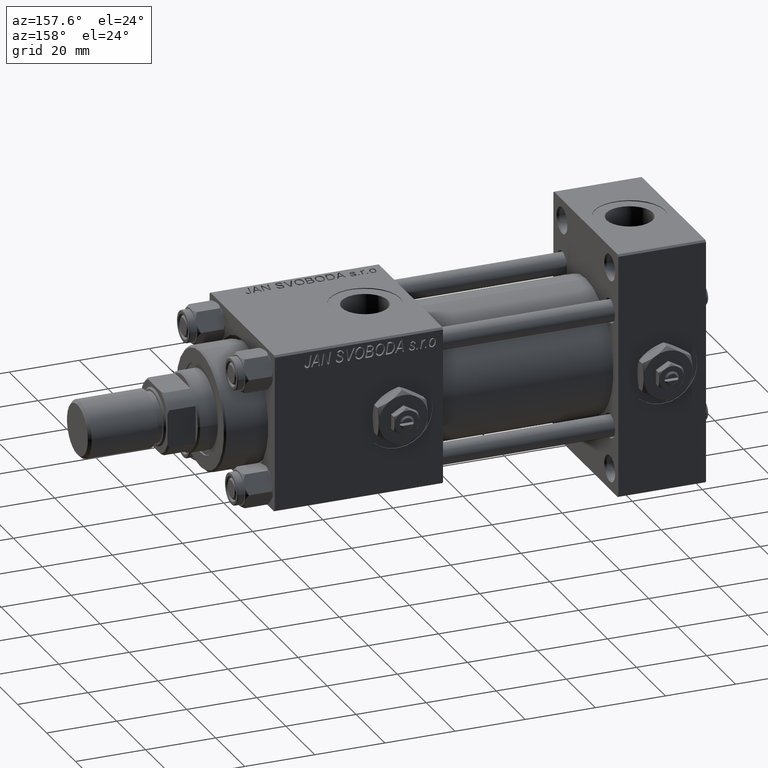
[diagram: clean part render]
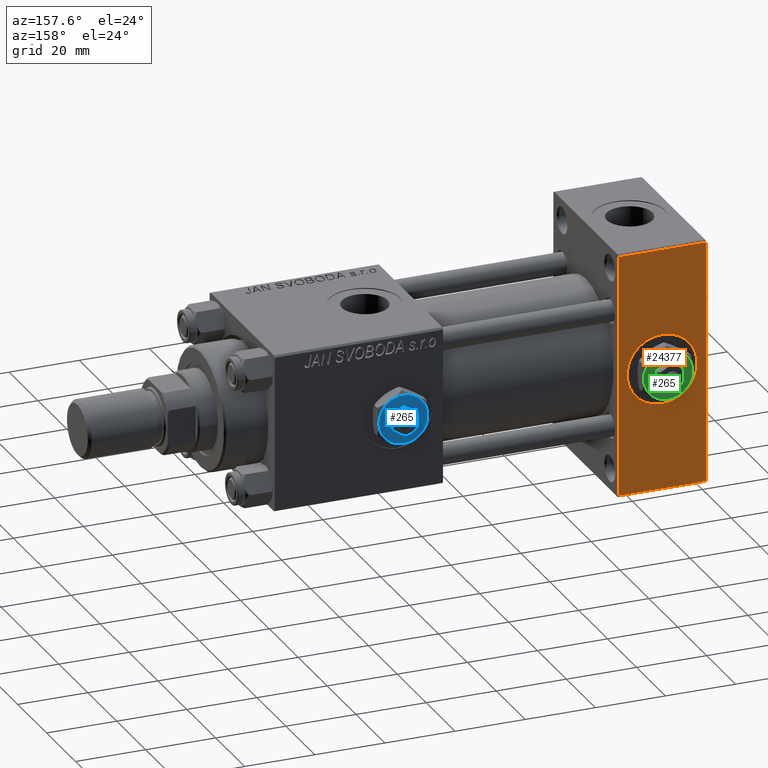
[diagram: same view with three faces highlighted in distinct colors, each labeled with its STEP entity id]
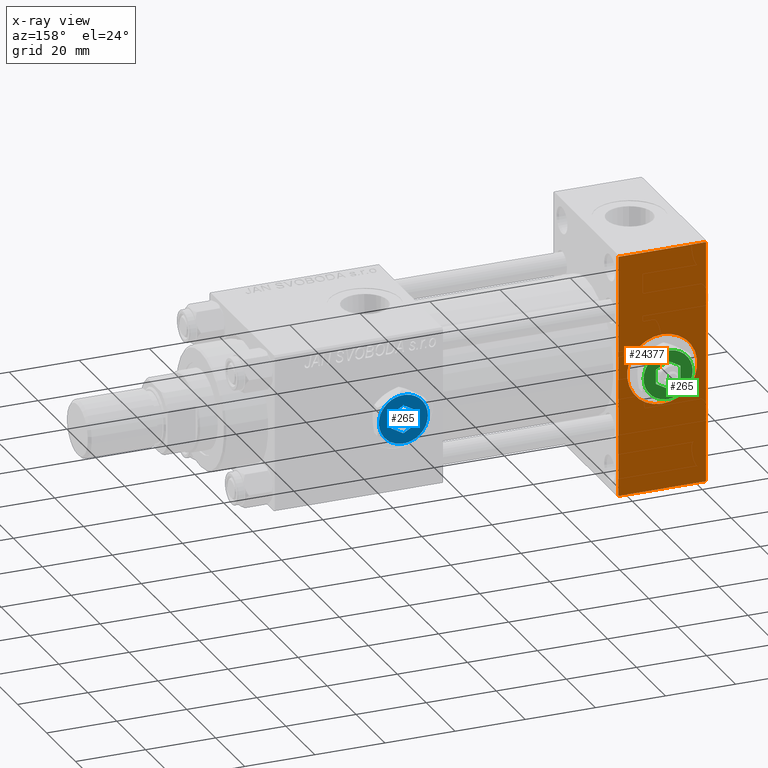
[diagram: x-ray of the same camera — body ghosted, the three highlighted faces saturated]
A machine part, auxiliary view with three faces highlighted in distinct colors.
The next image is the same camera in x-ray (body ghosted, the three faces saturated) — at least one of them is partly hidden behind the body in this view.
Their STEP definitions:

[orange] entity #24377 — the highlighted planar face has unit normal (0, 1, 0).
#1325 = CARTESIAN_POINT ( 'NONE',  ( 0.000000000000000000, 22.50000000000000355, 34.49999999999999289 ) ) ;
#1756 = DIRECTION ( 'NONE',  ( -0.000000000000000000, 1.000000000000000000, 0.000000000000000000 ) ) ;
#2003 = AXIS2_PLACEMENT_3D ( 'NONE', #29130, #45321, #9021 ) ;
#3245 = ORIENTED_EDGE ( 'NONE', *, *, #13567, .F. ) ;
#3697 = CARTESIAN_POINT ( 'NONE',  ( 25.00000000000000000, 22.50000000000000355, -34.49999999999999289 ) ) ;
#3930 = EDGE_CURVE ( 'NONE', #47564, #11513, #13629, .T. ) ;
#5665 = CARTESIAN_POINT ( 'NONE',  ( 25.00000000000000000, 22.50000000000000355, 35.00000000000000711 ) ) ;
#6272 = DIRECTION ( 'NONE',  ( 0.000000000000000000, -0.000000000000000000, 1.000000000000000000 ) ) ;
#6415 = DIRECTION ( 'NONE',  ( 1.000000000000000000, 0.000000000000000000, 0.000000000000000000 ) ) ;
#6442 = ORIENTED_EDGE ( 'NONE', *, *, #22543, .F. ) ;
#6887 = VECTOR ( 'NONE', #51894, 1000.000000000000000 ) ;
#8932 = EDGE_LOOP ( 'NONE', ( #13170, #6442 ) ) ;
#9021 = DIRECTION ( 'NONE',  ( 0.000000000000000000, 0.000000000000000000, 1.000000000000000000 ) ) ;
#11513 = VERTEX_POINT ( 'NONE', #47292 ) ;
#12173 = CIRCLE ( 'NONE', #51995, 9.999999999999996447 ) ;
#12414 = CARTESIAN_POINT ( 'NONE',  ( 12.50000000000000000, 22.50000000000000355, 0.000000000000000000 ) ) ;
#13170 = ORIENTED_EDGE ( 'NONE', *, *, #23717, .F. ) ;
#13567 = EDGE_CURVE ( 'NONE', #23351, #23527, #40177, .T. ) ;
#13629 = LINE ( 'NONE', #5665, #24724 ) ;
#13705 = FACE_BOUND ( 'NONE', #8932, .T. ) ;
#16535 = ORIENTED_EDGE ( 'NONE', *, *, #38044, .T. ) ;
#17425 = EDGE_LOOP ( 'NONE', ( #45088, #48806, #3245, #16535 ) ) ;
#17943 = FACE_OUTER_BOUND ( 'NONE', #17425, .T. ) ;
#19145 = VERTEX_POINT ( 'NONE', #51740 ) ;
#21904 = CARTESIAN_POINT ( 'NONE',  ( 25.00000000000000000, 22.50000000000000355, 34.49999999999999289 ) ) ;
#22543 = EDGE_CURVE ( 'NONE', #19145, #28847, #29051, .T. ) ;
#23351 = VERTEX_POINT ( 'NONE', #1325 ) ;
#23527 = VERTEX_POINT ( 'NONE', #43692 ) ;
#23578 = DIRECTION ( 'NONE',  ( -1.000000000000000000, 0.000000000000000000, 0.000000000000000000 ) ) ;
#23717 = EDGE_CURVE ( 'NONE', #28847, #19145, #12173, .T. ) ;
#24377 = ADVANCED_FACE ( 'NONE', ( #13705, #17943 ), #29848, .T. ) ;
#24724 = VECTOR ( 'NONE', #37462, 1000.000000000000000 ) ;
#27444 = AXIS2_PLACEMENT_3D ( 'NONE', #38061, #1756, #6272 ) ;
#28847 = VERTEX_POINT ( 'NONE', #38051 ) ;
#29051 = CIRCLE ( 'NONE', #2003, 9.999999999999996447 ) ;
#29130 = CARTESIAN_POINT ( 'NONE',  ( 12.50000000000000000, 22.50000000000000355, 0.000000000000000000 ) ) ;
#29639 = VECTOR ( 'NONE', #6415, 1000.000000000000000 ) ;
#29848 = PLANE ( 'NONE',  #27444 ) ;
#32252 = DIRECTION ( 'NONE',  ( 0.000000000000000000, 0.000000000000000000, 1.000000000000000000 ) ) ;
#32785 = DIRECTION ( 'NONE',  ( 0.000000000000000000, 1.000000000000000000, 0.000000000000000000 ) ) ;
#35956 = EDGE_CURVE ( 'NONE', #11513, #23527, #40250, .T. ) ;
#37462 = DIRECTION ( 'NONE',  ( 0.000000000000000000, 0.000000000000000000, -1.000000000000000000 ) ) ;
#38044 = EDGE_CURVE ( 'NONE', #23351, #47564, #43487, .T. ) ;
#38051 = CARTESIAN_POINT ( 'NONE',  ( 12.50000000000000000, 22.50000000000000355, 9.999999999999996447 ) ) ;
#38061 = CARTESIAN_POINT ( 'NONE',  ( 25.00000000000000000, 22.50000000000000355, 35.00000000000000711 ) ) ;
#40177 = LINE ( 'NONE', #47390, #6887 ) ;
#40250 = LINE ( 'NONE', #3697, #41403 ) ;
#41403 = VECTOR ( 'NONE', #23578, 1000.000000000000000 ) ;
#43487 = LINE ( 'NONE', #46446, #29639 ) ;
#43692 = CARTESIAN_POINT ( 'NONE',  ( 0.000000000000000000, 22.50000000000000355, -34.49999999999999289 ) ) ;
#45088 = ORIENTED_EDGE ( 'NONE', *, *, #3930, .T. ) ;
#45321 = DIRECTION ( 'NONE',  ( 0.000000000000000000, 1.000000000000000000, 0.000000000000000000 ) ) ;
#46446 = CARTESIAN_POINT ( 'NONE',  ( 25.00000000000000000, 22.50000000000000355, 34.49999999999999289 ) ) ;
#47292 = CARTESIAN_POINT ( 'NONE',  ( 25.00000000000000000, 22.50000000000000355, -34.49999999999999289 ) ) ;
#47390 = CARTESIAN_POINT ( 'NONE',  ( 0.000000000000000000, 22.50000000000000355, 35.00000000000000711 ) ) ;
#47564 = VERTEX_POINT ( 'NONE', #21904 ) ;
#48806 = ORIENTED_EDGE ( 'NONE', *, *, #35956, .T. ) ;
#51740 = CARTESIAN_POINT ( 'NONE',  ( 12.50000000000000178, 22.50000000000000355, -9.999999999999996447 ) ) ;
#51894 = DIRECTION ( 'NONE',  ( 0.000000000000000000, 0.000000000000000000, -1.000000000000000000 ) ) ;
#51995 = AXIS2_PLACEMENT_3D ( 'NONE', #12414, #32785, #32252 ) ;

[blue] entity #265 — the highlighted planar face has unit normal (0, 1, 0).
#40 = CARTESIAN_POINT ( 'NONE',  ( -3.499999999999998668, -2.020725942163689837, 4.299999999999999822 ) ) ;
#210 = ORIENTED_EDGE ( 'NONE', *, *, #41215, .T. ) ;
#265 = ADVANCED_FACE ( 'NONE', ( #42992, #2195 ), #23372, .T. ) ;
#302 = AXIS2_PLACEMENT_3D ( 'NONE', #51085, #19492, #30896 ) ;
#712 = EDGE_LOOP ( 'NONE', ( #12828, #22554, #49935, #210, #37365, #26474 ) ) ;
#2143 = CARTESIAN_POINT ( 'NONE',  ( 3.500000000000000000, -2.020725942163690281, 4.299999999999999822 ) ) ;
#2146 = VERTEX_POINT ( 'NONE', #2143 ) ;
#2195 = FACE_BOUND ( 'NONE', #43468, .T. ) ;
#4001 = EDGE_CURVE ( 'NONE', #6268, #32071, #10185, .T. ) ;
#4300 = LINE ( 'NONE', #45127, #11244 ) ;
#4605 = DIRECTION ( 'NONE',  ( 1.000000000000000000, 0.000000000000000000, 0.000000000000000000 ) ) ;
#4833 = CARTESIAN_POINT ( 'NONE',  ( -3.500000000000000888, 6.062177826491073063, 4.299999999999999822 ) ) ;
#5797 = VERTEX_POINT ( 'NONE', #7410 ) ;
#5842 = LINE ( 'NONE', #46151, #49141 ) ;
#6084 = LINE ( 'NONE', #22266, #44009 ) ;
#6268 = VERTEX_POINT ( 'NONE', #18973 ) ;
#7386 = CARTESIAN_POINT ( 'NONE',  ( -7.000000000000001776, -2.253471898105739040E-15, 4.299999999999999822 ) ) ;
#7410 = CARTESIAN_POINT ( 'NONE',  ( -3.500000000000000000, -6.062177826491073063, 4.299999999999999822 ) ) ;
#7531 = CARTESIAN_POINT ( 'NONE',  ( 0.000000000000000000, 0.000000000000000000, 4.299999999999999822 ) ) ;
#8034 = DIRECTION ( 'NONE',  ( -3.219245568722483357E-16, 1.000000000000000000, 0.000000000000000000 ) ) ;
#10009 = VERTEX_POINT ( 'NONE', #18227 ) ;
#10185 = LINE ( 'NONE', #31080, #11210 ) ;
#10310 = AXIS2_PLACEMENT_3D ( 'NONE', #48264, #19148, #19648 ) ;
#10959 = ORIENTED_EDGE ( 'NONE', *, *, #17580, .F. ) ;
#11210 = VECTOR ( 'NONE', #46488, 1000.000000000000000 ) ;
#11244 = VECTOR ( 'NONE', #8034, 1000.000000000000000 ) ;
#11869 = AXIS2_PLACEMENT_3D ( 'NONE', #43247, #19150, #15420 ) ;
#12177 = EDGE_CURVE ( 'NONE', #26108, #2146, #6084, .T. ) ;
#12282 = CARTESIAN_POINT ( 'NONE',  ( 0.000000000000000000, 4.041451884327380562, 4.299999999999999822 ) ) ;
#12828 = ORIENTED_EDGE ( 'NONE', *, *, #47407, .T. ) ;
#12902 = CARTESIAN_POINT ( 'NONE',  ( 6.999999999999994671, 3.004629197474313724E-15, 4.299999999999999822 ) ) ;
#13287 = EDGE_CURVE ( 'NONE', #10009, #41052, #5842, .T. ) ;
#14576 = VERTEX_POINT ( 'NONE', #12902 ) ;
#14640 = CIRCLE ( 'NONE', #41710, 7.000000000000001776 ) ;
#14908 = ORIENTED_EDGE ( 'NONE', *, *, #36102, .F. ) ;
#15420 = DIRECTION ( 'NONE',  ( 1.000000000000000000, 0.000000000000000000, -0.000000000000000000 ) ) ;
#16333 = DIRECTION ( 'NONE',  ( 0.000000000000000000, 0.000000000000000000, 1.000000000000000000 ) ) ;
#17580 = EDGE_CURVE ( 'NONE', #41052, #6268, #28405, .T. ) ;
#18227 = CARTESIAN_POINT ( 'NONE',  ( 3.499999999999998224, 2.020725942163691613, 4.299999999999999822 ) ) ;
#18973 = CARTESIAN_POINT ( 'NONE',  ( -3.499999999999999112, 2.020725942163690725, 4.299999999999999822 ) ) ;
#19148 = DIRECTION ( 'NONE',  ( 0.000000000000000000, 0.000000000000000000, 1.000000000000000000 ) ) ;
#19150 = DIRECTION ( 'NONE',  ( 0.000000000000000000, 0.000000000000000000, 1.000000000000000000 ) ) ;
#19492 = DIRECTION ( 'NONE',  ( 0.000000000000000000, 0.000000000000000000, 1.000000000000000000 ) ) ;
#19586 = CIRCLE ( 'NONE', #10310, 7.000000000000001776 ) ;
#19648 = DIRECTION ( 'NONE',  ( 1.000000000000000000, 0.000000000000000000, 0.000000000000000000 ) ) ;
#20446 = AXIS2_PLACEMENT_3D ( 'NONE', #7531, #34844, #51054 ) ;
#20841 = DIRECTION ( 'NONE',  ( 1.000000000000000000, 0.000000000000000000, 0.000000000000000000 ) ) ;
#21013 = DIRECTION ( 'NONE',  ( -0.8660254037844385966, -0.4999999999999998890, 0.000000000000000000 ) ) ;
#22266 = CARTESIAN_POINT ( 'NONE',  ( -2.443687887572056883E-16, -4.041451884327378785, 4.299999999999999822 ) ) ;
#22554 = ORIENTED_EDGE ( 'NONE', *, *, #49107, .T. ) ;
#23185 = CIRCLE ( 'NONE', #302, 7.000000000000001776 ) ;
#23372 = PLANE ( 'NONE',  #11869 ) ;
#23510 = CARTESIAN_POINT ( 'NONE',  ( 0.000000000000000000, 0.000000000000000000, 4.299999999999999822 ) ) ;
#24529 = CARTESIAN_POINT ( 'NONE',  ( 0.000000000000000000, 4.041451884327380562, 4.299999999999999822 ) ) ;
#24747 = DIRECTION ( 'NONE',  ( 0.000000000000000000, 0.000000000000000000, 1.000000000000000000 ) ) ;
#26108 = VERTEX_POINT ( 'NONE', #27248 ) ;
#26193 = VERTEX_POINT ( 'NONE', #7386 ) ;
#26474 = ORIENTED_EDGE ( 'NONE', *, *, #40372, .T. ) ;
#26516 = AXIS2_PLACEMENT_3D ( 'NONE', #23510, #43899, #38901 ) ;
#26967 = CARTESIAN_POINT ( 'NONE',  ( 0.000000000000000000, 0.000000000000000000, 4.299999999999999822 ) ) ;
#27248 = CARTESIAN_POINT ( 'NONE',  ( -2.443687887572056883E-16, -4.041451884327378785, 4.299999999999999822 ) ) ;
#27490 = VERTEX_POINT ( 'NONE', #42940 ) ;
#28173 = CARTESIAN_POINT ( 'NONE',  ( 0.000000000000000000, 0.000000000000000000, 4.299999999999999822 ) ) ;
#28405 = LINE ( 'NONE', #12282, #34913 ) ;
#30832 = EDGE_CURVE ( 'NONE', #27490, #33921, #47187, .T. ) ;
#30896 = DIRECTION ( 'NONE',  ( 1.000000000000000000, 0.000000000000000000, 0.000000000000000000 ) ) ;
#31080 = CARTESIAN_POINT ( 'NONE',  ( -3.499999999999999112, 2.020725942163690725, 4.299999999999999822 ) ) ;
#32071 = VERTEX_POINT ( 'NONE', #40 ) ;
#33253 = CIRCLE ( 'NONE', #26516, 7.000000000000001776 ) ;
#33483 = ORIENTED_EDGE ( 'NONE', *, *, #12177, .F. ) ;
#33921 = VERTEX_POINT ( 'NONE', #4833 ) ;
#34601 = CARTESIAN_POINT ( 'NONE',  ( -3.499999999999998668, -2.020725942163689837, 4.299999999999999822 ) ) ;
#34689 = CARTESIAN_POINT ( 'NONE',  ( 3.500000000000000888, -6.062177826491073951, 4.299999999999999822 ) ) ;
#34844 = DIRECTION ( 'NONE',  ( 0.000000000000000000, 0.000000000000000000, 1.000000000000000000 ) ) ;
#34871 = CIRCLE ( 'NONE', #20446, 7.000000000000001776 ) ;
#34913 = VECTOR ( 'NONE', #21013, 1000.000000000000227 ) ;
#36102 = EDGE_CURVE ( 'NONE', #32071, #26108, #39368, .T. ) ;
#37365 = ORIENTED_EDGE ( 'NONE', *, *, #47339, .T. ) ;
#38422 = DIRECTION ( 'NONE',  ( 0.8660254037844388186, 0.4999999999999996669, 0.000000000000000000 ) ) ;
#38901 = DIRECTION ( 'NONE',  ( 1.000000000000000000, 0.000000000000000000, 0.000000000000000000 ) ) ;
#39368 = LINE ( 'NONE', #34601, #41441 ) ;
#40372 = EDGE_CURVE ( 'NONE', #5797, #50870, #19586, .T. ) ;
#41052 = VERTEX_POINT ( 'NONE', #24529 ) ;
#41215 = EDGE_CURVE ( 'NONE', #33921, #26193, #34871, .T. ) ;
#41441 = VECTOR ( 'NONE', #43338, 1000.000000000000227 ) ;
#41710 = AXIS2_PLACEMENT_3D ( 'NONE', #26967, #16333, #20841 ) ;
#42634 = ORIENTED_EDGE ( 'NONE', *, *, #4001, .F. ) ;
#42940 = CARTESIAN_POINT ( 'NONE',  ( 3.500000000000000444, 6.062177826491073063, 4.299999999999999822 ) ) ;
#42992 = FACE_OUTER_BOUND ( 'NONE', #712, .T. ) ;
#43247 = CARTESIAN_POINT ( 'NONE',  ( 0.000000000000000000, 0.000000000000000000, 4.299999999999999822 ) ) ;
#43338 = DIRECTION ( 'NONE',  ( 0.8660254037844385966, -0.4999999999999998890, 0.000000000000000000 ) ) ;
#43468 = EDGE_LOOP ( 'NONE', ( #10959, #50119, #47245, #33483, #14908, #42634 ) ) ;
#43473 = EDGE_CURVE ( 'NONE', #2146, #10009, #4300, .T. ) ;
#43899 = DIRECTION ( 'NONE',  ( 0.000000000000000000, 0.000000000000000000, 1.000000000000000000 ) ) ;
#44009 = VECTOR ( 'NONE', #38422, 1000.000000000000114 ) ;
#45127 = CARTESIAN_POINT ( 'NONE',  ( 3.499999999999999556, -2.020725942163690281, 4.299999999999999822 ) ) ;
#46151 = CARTESIAN_POINT ( 'NONE',  ( 3.499999999999998224, 2.020725942163691613, 4.299999999999999822 ) ) ;
#46488 = DIRECTION ( 'NONE',  ( 1.073081856240828196E-16, -1.000000000000000000, 0.000000000000000000 ) ) ;
#47187 = CIRCLE ( 'NONE', #48829, 7.000000000000001776 ) ;
#47245 = ORIENTED_EDGE ( 'NONE', *, *, #43473, .F. ) ;
#47339 = EDGE_CURVE ( 'NONE', #26193, #5797, #33253, .T. ) ;
#47407 = EDGE_CURVE ( 'NONE', #50870, #14576, #14640, .T. ) ;
#48264 = CARTESIAN_POINT ( 'NONE',  ( 0.000000000000000000, 0.000000000000000000, 4.299999999999999822 ) ) ;
#48829 = AXIS2_PLACEMENT_3D ( 'NONE', #28173, #24747, #4605 ) ;
#49107 = EDGE_CURVE ( 'NONE', #14576, #27490, #23185, .T. ) ;
#49141 = VECTOR ( 'NONE', #51194, 1000.000000000000114 ) ;
#49935 = ORIENTED_EDGE ( 'NONE', *, *, #30832, .T. ) ;
#50119 = ORIENTED_EDGE ( 'NONE', *, *, #13287, .F. ) ;
#50870 = VERTEX_POINT ( 'NONE', #34689 ) ;
#51054 = DIRECTION ( 'NONE',  ( 1.000000000000000000, 0.000000000000000000, 0.000000000000000000 ) ) ;
#51085 = CARTESIAN_POINT ( 'NONE',  ( 0.000000000000000000, 0.000000000000000000, 4.299999999999999822 ) ) ;
#51194 = DIRECTION ( 'NONE',  ( -0.8660254037844387076, 0.4999999999999998335, 0.000000000000000000 ) ) ;

[green] entity #265 — the highlighted planar face has unit normal (0, 1, 0).
#40 = CARTESIAN_POINT ( 'NONE',  ( -3.499999999999998668, -2.020725942163689837, 4.299999999999999822 ) ) ;
#210 = ORIENTED_EDGE ( 'NONE', *, *, #41215, .T. ) ;
#265 = ADVANCED_FACE ( 'NONE', ( #42992, #2195 ), #23372, .T. ) ;
#302 = AXIS2_PLACEMENT_3D ( 'NONE', #51085, #19492, #30896 ) ;
#712 = EDGE_LOOP ( 'NONE', ( #12828, #22554, #49935, #210, #37365, #26474 ) ) ;
#2143 = CARTESIAN_POINT ( 'NONE',  ( 3.500000000000000000, -2.020725942163690281, 4.299999999999999822 ) ) ;
#2146 = VERTEX_POINT ( 'NONE', #2143 ) ;
#2195 = FACE_BOUND ( 'NONE', #43468, .T. ) ;
#4001 = EDGE_CURVE ( 'NONE', #6268, #32071, #10185, .T. ) ;
#4300 = LINE ( 'NONE', #45127, #11244 ) ;
#4605 = DIRECTION ( 'NONE',  ( 1.000000000000000000, 0.000000000000000000, 0.000000000000000000 ) ) ;
#4833 = CARTESIAN_POINT ( 'NONE',  ( -3.500000000000000888, 6.062177826491073063, 4.299999999999999822 ) ) ;
#5797 = VERTEX_POINT ( 'NONE', #7410 ) ;
#5842 = LINE ( 'NONE', #46151, #49141 ) ;
#6084 = LINE ( 'NONE', #22266, #44009 ) ;
#6268 = VERTEX_POINT ( 'NONE', #18973 ) ;
#7386 = CARTESIAN_POINT ( 'NONE',  ( -7.000000000000001776, -2.253471898105739040E-15, 4.299999999999999822 ) ) ;
#7410 = CARTESIAN_POINT ( 'NONE',  ( -3.500000000000000000, -6.062177826491073063, 4.299999999999999822 ) ) ;
#7531 = CARTESIAN_POINT ( 'NONE',  ( 0.000000000000000000, 0.000000000000000000, 4.299999999999999822 ) ) ;
#8034 = DIRECTION ( 'NONE',  ( -3.219245568722483357E-16, 1.000000000000000000, 0.000000000000000000 ) ) ;
#10009 = VERTEX_POINT ( 'NONE', #18227 ) ;
#10185 = LINE ( 'NONE', #31080, #11210 ) ;
#10310 = AXIS2_PLACEMENT_3D ( 'NONE', #48264, #19148, #19648 ) ;
#10959 = ORIENTED_EDGE ( 'NONE', *, *, #17580, .F. ) ;
#11210 = VECTOR ( 'NONE', #46488, 1000.000000000000000 ) ;
#11244 = VECTOR ( 'NONE', #8034, 1000.000000000000000 ) ;
#11869 = AXIS2_PLACEMENT_3D ( 'NONE', #43247, #19150, #15420 ) ;
#12177 = EDGE_CURVE ( 'NONE', #26108, #2146, #6084, .T. ) ;
#12282 = CARTESIAN_POINT ( 'NONE',  ( 0.000000000000000000, 4.041451884327380562, 4.299999999999999822 ) ) ;
#12828 = ORIENTED_EDGE ( 'NONE', *, *, #47407, .T. ) ;
#12902 = CARTESIAN_POINT ( 'NONE',  ( 6.999999999999994671, 3.004629197474313724E-15, 4.299999999999999822 ) ) ;
#13287 = EDGE_CURVE ( 'NONE', #10009, #41052, #5842, .T. ) ;
#14576 = VERTEX_POINT ( 'NONE', #12902 ) ;
#14640 = CIRCLE ( 'NONE', #41710, 7.000000000000001776 ) ;
#14908 = ORIENTED_EDGE ( 'NONE', *, *, #36102, .F. ) ;
#15420 = DIRECTION ( 'NONE',  ( 1.000000000000000000, 0.000000000000000000, -0.000000000000000000 ) ) ;
#16333 = DIRECTION ( 'NONE',  ( 0.000000000000000000, 0.000000000000000000, 1.000000000000000000 ) ) ;
#17580 = EDGE_CURVE ( 'NONE', #41052, #6268, #28405, .T. ) ;
#18227 = CARTESIAN_POINT ( 'NONE',  ( 3.499999999999998224, 2.020725942163691613, 4.299999999999999822 ) ) ;
#18973 = CARTESIAN_POINT ( 'NONE',  ( -3.499999999999999112, 2.020725942163690725, 4.299999999999999822 ) ) ;
#19148 = DIRECTION ( 'NONE',  ( 0.000000000000000000, 0.000000000000000000, 1.000000000000000000 ) ) ;
#19150 = DIRECTION ( 'NONE',  ( 0.000000000000000000, 0.000000000000000000, 1.000000000000000000 ) ) ;
#19492 = DIRECTION ( 'NONE',  ( 0.000000000000000000, 0.000000000000000000, 1.000000000000000000 ) ) ;
#19586 = CIRCLE ( 'NONE', #10310, 7.000000000000001776 ) ;
#19648 = DIRECTION ( 'NONE',  ( 1.000000000000000000, 0.000000000000000000, 0.000000000000000000 ) ) ;
#20446 = AXIS2_PLACEMENT_3D ( 'NONE', #7531, #34844, #51054 ) ;
#20841 = DIRECTION ( 'NONE',  ( 1.000000000000000000, 0.000000000000000000, 0.000000000000000000 ) ) ;
#21013 = DIRECTION ( 'NONE',  ( -0.8660254037844385966, -0.4999999999999998890, 0.000000000000000000 ) ) ;
#22266 = CARTESIAN_POINT ( 'NONE',  ( -2.443687887572056883E-16, -4.041451884327378785, 4.299999999999999822 ) ) ;
#22554 = ORIENTED_EDGE ( 'NONE', *, *, #49107, .T. ) ;
#23185 = CIRCLE ( 'NONE', #302, 7.000000000000001776 ) ;
#23372 = PLANE ( 'NONE',  #11869 ) ;
#23510 = CARTESIAN_POINT ( 'NONE',  ( 0.000000000000000000, 0.000000000000000000, 4.299999999999999822 ) ) ;
#24529 = CARTESIAN_POINT ( 'NONE',  ( 0.000000000000000000, 4.041451884327380562, 4.299999999999999822 ) ) ;
#24747 = DIRECTION ( 'NONE',  ( 0.000000000000000000, 0.000000000000000000, 1.000000000000000000 ) ) ;
#26108 = VERTEX_POINT ( 'NONE', #27248 ) ;
#26193 = VERTEX_POINT ( 'NONE', #7386 ) ;
#26474 = ORIENTED_EDGE ( 'NONE', *, *, #40372, .T. ) ;
#26516 = AXIS2_PLACEMENT_3D ( 'NONE', #23510, #43899, #38901 ) ;
#26967 = CARTESIAN_POINT ( 'NONE',  ( 0.000000000000000000, 0.000000000000000000, 4.299999999999999822 ) ) ;
#27248 = CARTESIAN_POINT ( 'NONE',  ( -2.443687887572056883E-16, -4.041451884327378785, 4.299999999999999822 ) ) ;
#27490 = VERTEX_POINT ( 'NONE', #42940 ) ;
#28173 = CARTESIAN_POINT ( 'NONE',  ( 0.000000000000000000, 0.000000000000000000, 4.299999999999999822 ) ) ;
#28405 = LINE ( 'NONE', #12282, #34913 ) ;
#30832 = EDGE_CURVE ( 'NONE', #27490, #33921, #47187, .T. ) ;
#30896 = DIRECTION ( 'NONE',  ( 1.000000000000000000, 0.000000000000000000, 0.000000000000000000 ) ) ;
#31080 = CARTESIAN_POINT ( 'NONE',  ( -3.499999999999999112, 2.020725942163690725, 4.299999999999999822 ) ) ;
#32071 = VERTEX_POINT ( 'NONE', #40 ) ;
#33253 = CIRCLE ( 'NONE', #26516, 7.000000000000001776 ) ;
#33483 = ORIENTED_EDGE ( 'NONE', *, *, #12177, .F. ) ;
#33921 = VERTEX_POINT ( 'NONE', #4833 ) ;
#34601 = CARTESIAN_POINT ( 'NONE',  ( -3.499999999999998668, -2.020725942163689837, 4.299999999999999822 ) ) ;
#34689 = CARTESIAN_POINT ( 'NONE',  ( 3.500000000000000888, -6.062177826491073951, 4.299999999999999822 ) ) ;
#34844 = DIRECTION ( 'NONE',  ( 0.000000000000000000, 0.000000000000000000, 1.000000000000000000 ) ) ;
#34871 = CIRCLE ( 'NONE', #20446, 7.000000000000001776 ) ;
#34913 = VECTOR ( 'NONE', #21013, 1000.000000000000227 ) ;
#36102 = EDGE_CURVE ( 'NONE', #32071, #26108, #39368, .T. ) ;
#37365 = ORIENTED_EDGE ( 'NONE', *, *, #47339, .T. ) ;
#38422 = DIRECTION ( 'NONE',  ( 0.8660254037844388186, 0.4999999999999996669, 0.000000000000000000 ) ) ;
#38901 = DIRECTION ( 'NONE',  ( 1.000000000000000000, 0.000000000000000000, 0.000000000000000000 ) ) ;
#39368 = LINE ( 'NONE', #34601, #41441 ) ;
#40372 = EDGE_CURVE ( 'NONE', #5797, #50870, #19586, .T. ) ;
#41052 = VERTEX_POINT ( 'NONE', #24529 ) ;
#41215 = EDGE_CURVE ( 'NONE', #33921, #26193, #34871, .T. ) ;
#41441 = VECTOR ( 'NONE', #43338, 1000.000000000000227 ) ;
#41710 = AXIS2_PLACEMENT_3D ( 'NONE', #26967, #16333, #20841 ) ;
#42634 = ORIENTED_EDGE ( 'NONE', *, *, #4001, .F. ) ;
#42940 = CARTESIAN_POINT ( 'NONE',  ( 3.500000000000000444, 6.062177826491073063, 4.299999999999999822 ) ) ;
#42992 = FACE_OUTER_BOUND ( 'NONE', #712, .T. ) ;
#43247 = CARTESIAN_POINT ( 'NONE',  ( 0.000000000000000000, 0.000000000000000000, 4.299999999999999822 ) ) ;
#43338 = DIRECTION ( 'NONE',  ( 0.8660254037844385966, -0.4999999999999998890, 0.000000000000000000 ) ) ;
#43468 = EDGE_LOOP ( 'NONE', ( #10959, #50119, #47245, #33483, #14908, #42634 ) ) ;
#43473 = EDGE_CURVE ( 'NONE', #2146, #10009, #4300, .T. ) ;
#43899 = DIRECTION ( 'NONE',  ( 0.000000000000000000, 0.000000000000000000, 1.000000000000000000 ) ) ;
#44009 = VECTOR ( 'NONE', #38422, 1000.000000000000114 ) ;
#45127 = CARTESIAN_POINT ( 'NONE',  ( 3.499999999999999556, -2.020725942163690281, 4.299999999999999822 ) ) ;
#46151 = CARTESIAN_POINT ( 'NONE',  ( 3.499999999999998224, 2.020725942163691613, 4.299999999999999822 ) ) ;
#46488 = DIRECTION ( 'NONE',  ( 1.073081856240828196E-16, -1.000000000000000000, 0.000000000000000000 ) ) ;
#47187 = CIRCLE ( 'NONE', #48829, 7.000000000000001776 ) ;
#47245 = ORIENTED_EDGE ( 'NONE', *, *, #43473, .F. ) ;
#47339 = EDGE_CURVE ( 'NONE', #26193, #5797, #33253, .T. ) ;
#47407 = EDGE_CURVE ( 'NONE', #50870, #14576, #14640, .T. ) ;
#48264 = CARTESIAN_POINT ( 'NONE',  ( 0.000000000000000000, 0.000000000000000000, 4.299999999999999822 ) ) ;
#48829 = AXIS2_PLACEMENT_3D ( 'NONE', #28173, #24747, #4605 ) ;
#49107 = EDGE_CURVE ( 'NONE', #14576, #27490, #23185, .T. ) ;
#49141 = VECTOR ( 'NONE', #51194, 1000.000000000000114 ) ;
#49935 = ORIENTED_EDGE ( 'NONE', *, *, #30832, .T. ) ;
#50119 = ORIENTED_EDGE ( 'NONE', *, *, #13287, .F. ) ;
#50870 = VERTEX_POINT ( 'NONE', #34689 ) ;
#51054 = DIRECTION ( 'NONE',  ( 1.000000000000000000, 0.000000000000000000, 0.000000000000000000 ) ) ;
#51085 = CARTESIAN_POINT ( 'NONE',  ( 0.000000000000000000, 0.000000000000000000, 4.299999999999999822 ) ) ;
#51194 = DIRECTION ( 'NONE',  ( -0.8660254037844387076, 0.4999999999999998335, 0.000000000000000000 ) ) ;